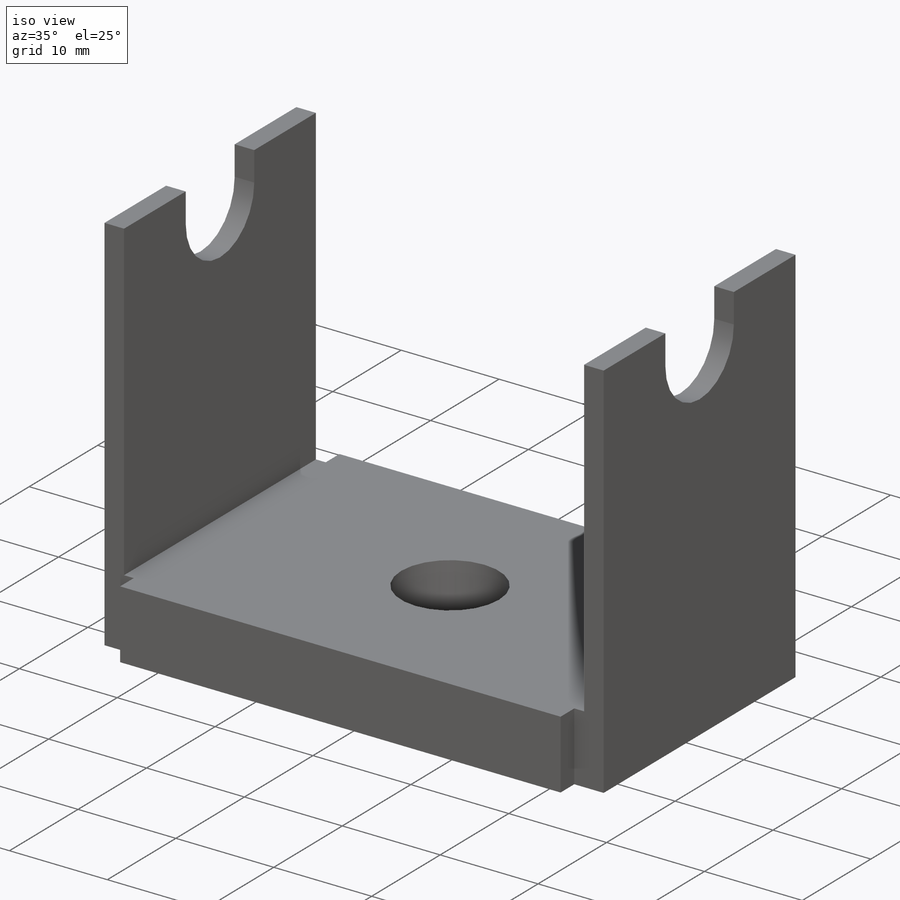
[diagram: iso view]
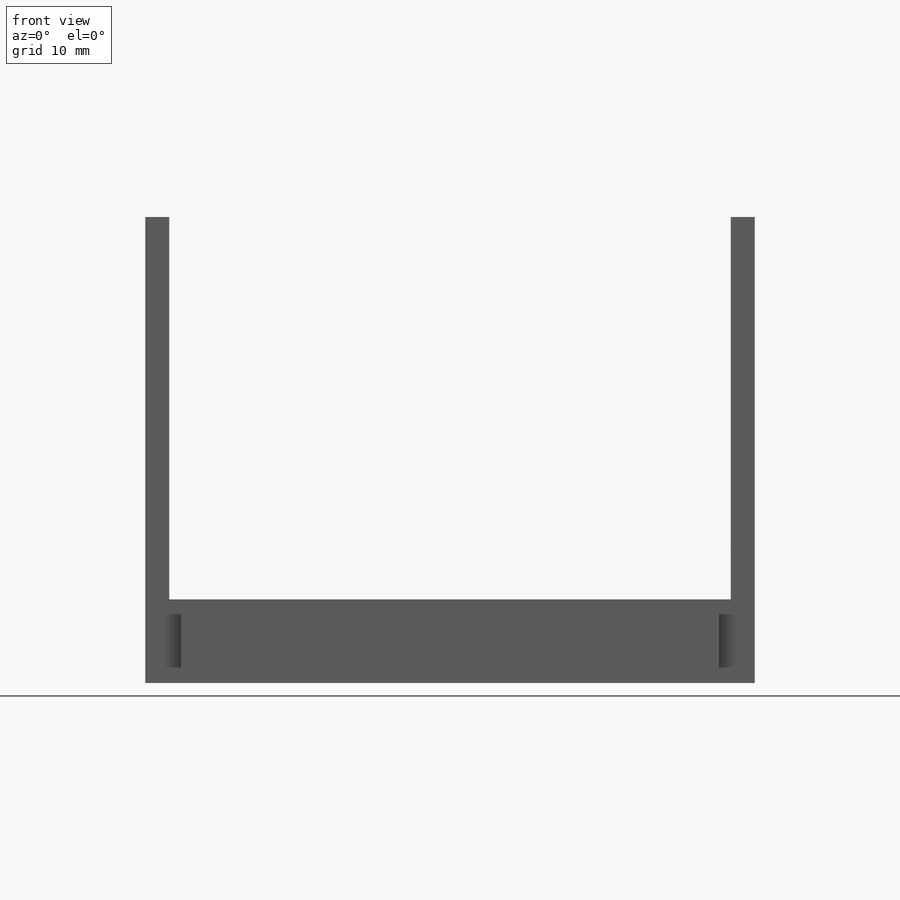
[diagram: front view]
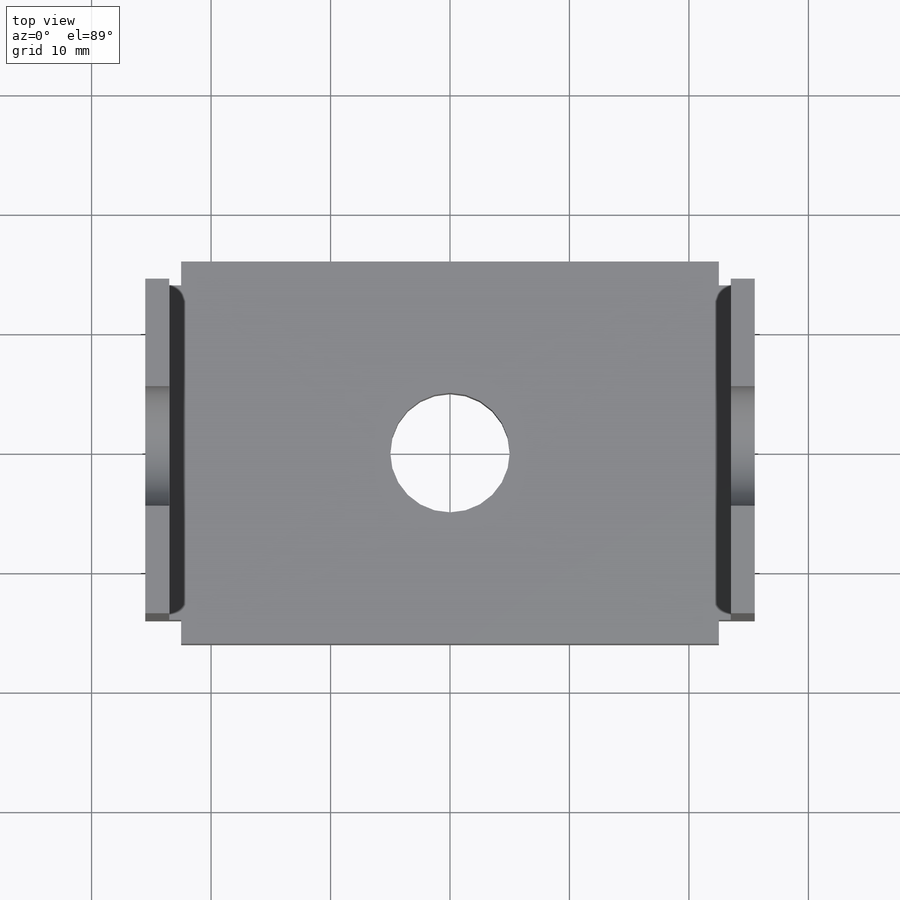
[diagram: top view]
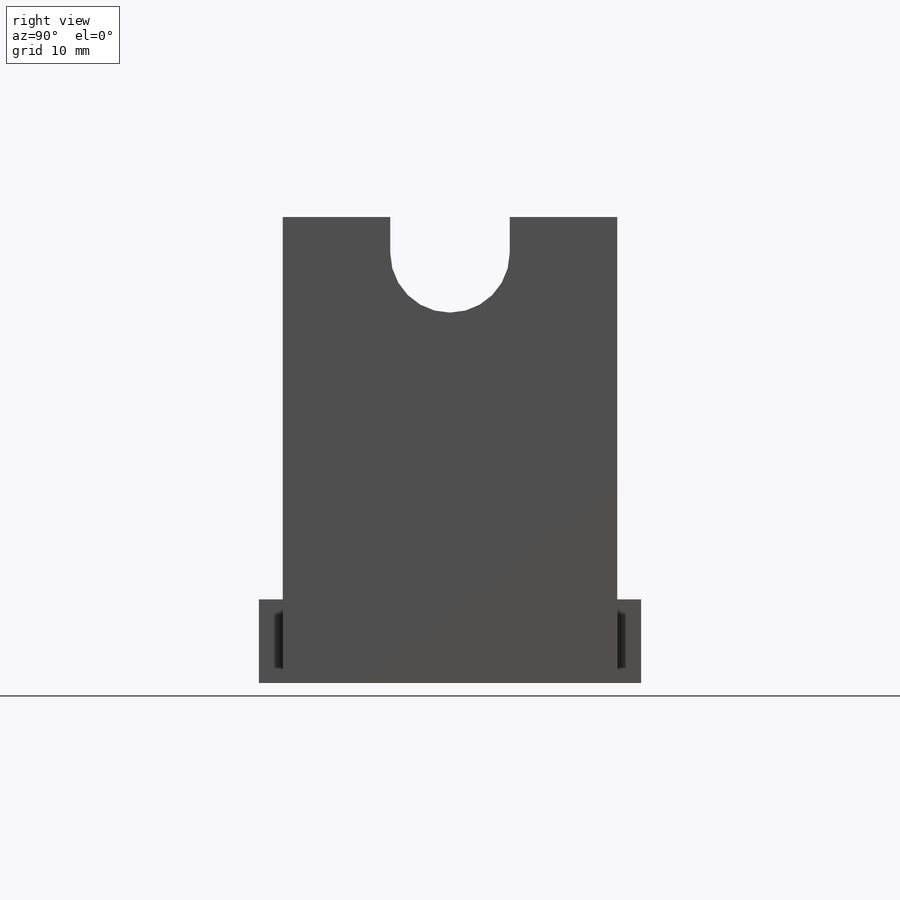
[diagram: right view]
SOLIDWORKS PART (.sldprt)
format: sldprt  version: not decoded by parser v0  size: 210,432 bytes
history: native  units: mm
features: sketch x4, extrude x2, cut_extrude x2, material x1, mirror x1 (+11 scaffold rows collapsed)
feature tree (21):
  scaffold x11  (default folders/planes/origin — collapsed)
  material  "Material <not specified>"
  sketch  "Sketch1"  dims[c1.D1=210.225mm c1.D2=51.0mm c1.D3=2.0mm c1.D4=39.0mm c1.D5=7.0mm c2.D1=3.0mm c2.D6=23.5mm]
  extrude  "Boss-Extrude1"  Depth=28mm
  sketch  "Sketch2"  dims[c1.D1=3.0mm c1.D2=0.5mm c1.D3=7.0mm c2.D2=1.0mm]
  extrude  "Boss-Extrude2"  Depth=45mm
  mirror  "Mirror1"
  sketch  "Sketch3"  dims[D1=10.0mm D2=36.0mm D3=36.0mm]
  cut_extrude  "Cut-Extrude1"  [1 undecoded]
  sketch  "Sketch4"  dims[D1=10.0mm]
  cut_extrude  "Cut-Extrude2"  [1 undecoded]
decode coverage: 6 of 9 modeling features carry decoded parameters
note: 2 parameter values undecoded
note: suppression state not decoded; provenance and decode notes live in map.json
